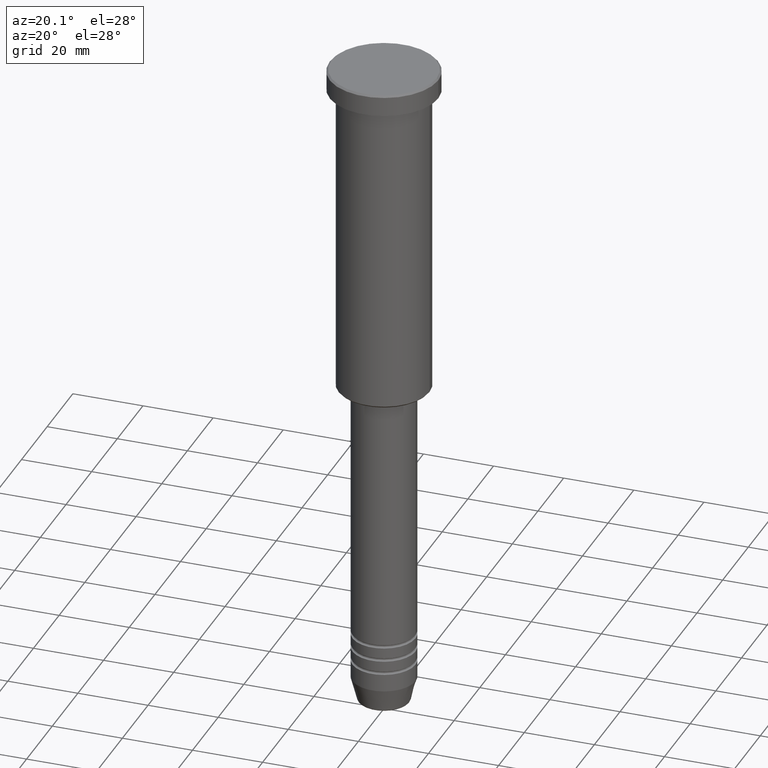
[diagram: clean part render]
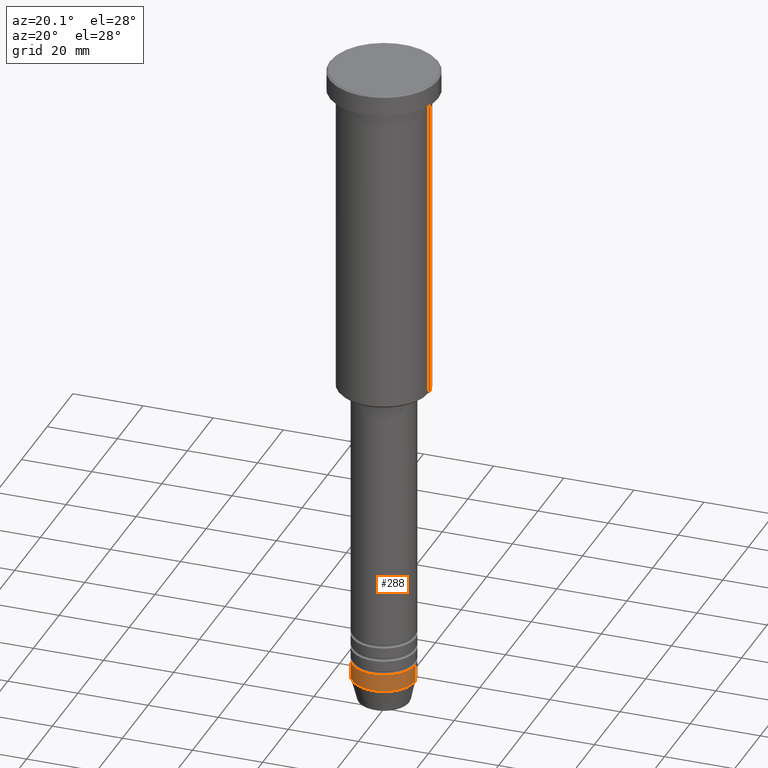
[diagram: same view with one face highlighted and labeled with its STEP entity id]
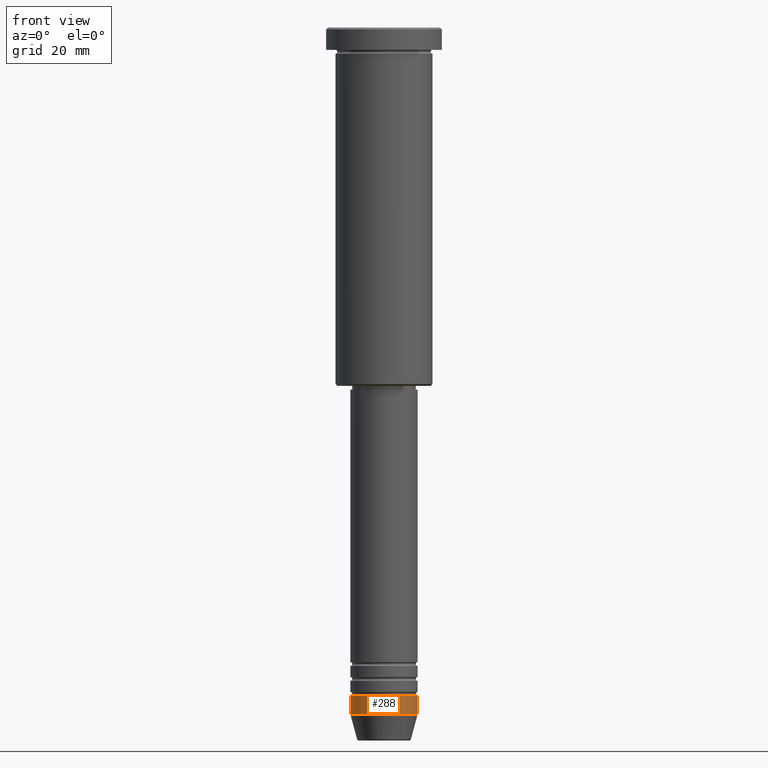
[diagram: same view with one face highlighted and labeled with its STEP entity id]
A machine part, auxiliary view. The second image highlights one B-rep face of the part: STEP entity #288.
A second angle (front view) of the same face is appended — the face is thin or edge-on in the first view.
In plain terms, the highlighted cylindrical surface (edge-blend (fillet) strip) has radius 9 mm, axis along (-0, -0, 1).
Its self-contained STEP definition (entity closure, byte-faithful):
#14 = LINE ( 'NONE', #478, #1001 ) ;
#17 = EDGE_CURVE ( 'NONE', #185, #1118, #470, .T. ) ;
#52 = ORIENTED_EDGE ( 'NONE', *, *, #592, .T. ) ;
#91 = DIRECTION ( 'NONE',  ( 1.000000000000000000, 0.000000000000000000, 0.000000000000000000 ) ) ;
#108 = EDGE_LOOP ( 'NONE', ( #730, #1179, #52, #282 ) ) ;
#125 = DIRECTION ( 'NONE',  ( 1.000000000000000000, 0.000000000000000000, 0.000000000000000000 ) ) ;
#128 = EDGE_CURVE ( 'NONE', #1118, #319, #1123, .T. ) ;
#179 = CARTESIAN_POINT ( 'NONE',  ( -9.000000000000000000, 1.102182119232617714E-15, 0.000000000000000000 ) ) ;
#185 = VERTEX_POINT ( 'NONE', #695 ) ;
#211 = DIRECTION ( 'NONE',  ( 1.000000000000000000, 0.000000000000000000, 0.000000000000000000 ) ) ;
#212 = DIRECTION ( 'NONE',  ( -0.000000000000000000, -0.000000000000000000, 1.000000000000000000 ) ) ;
#224 = VERTEX_POINT ( 'NONE', #1110 ) ;
#282 = ORIENTED_EDGE ( 'NONE', *, *, #128, .F. ) ;
#286 = AXIS2_PLACEMENT_3D ( 'NONE', #611, #624, #91 ) ;
#288 = ADVANCED_FACE ( 'NONE', ( #314 ), #1067, .T. ) ;
#295 = CARTESIAN_POINT ( 'NONE',  ( 0.000000000000000000, 0.000000000000000000, -179.0000000000000284 ) ) ;
#314 = FACE_OUTER_BOUND ( 'NONE', #108, .T. ) ;
#319 = VERTEX_POINT ( 'NONE', #530 ) ;
#470 = LINE ( 'NONE', #179, #1025 ) ;
#478 = CARTESIAN_POINT ( 'NONE',  ( 9.000000000000000000, 0.000000000000000000, 0.000000000000000000 ) ) ;
#486 = DIRECTION ( 'NONE',  ( -0.000000000000000000, -0.000000000000000000, 1.000000000000000000 ) ) ;
#501 = CARTESIAN_POINT ( 'NONE',  ( -9.000000000000000000, 1.102182119232617714E-15, -179.0000000000000284 ) ) ;
#530 = CARTESIAN_POINT ( 'NONE',  ( 9.000000000000000000, 0.000000000000000000, -179.0000000000000284 ) ) ;
#592 = EDGE_CURVE ( 'NONE', #224, #319, #14, .T. ) ;
#611 = CARTESIAN_POINT ( 'NONE',  ( 0.000000000000000000, 0.000000000000000000, 0.000000000000000000 ) ) ;
#624 = DIRECTION ( 'NONE',  ( -0.000000000000000000, -0.000000000000000000, 1.000000000000000000 ) ) ;
#627 = DIRECTION ( 'NONE',  ( -0.000000000000000000, -0.000000000000000000, 1.000000000000000000 ) ) ;
#676 = DIRECTION ( 'NONE',  ( -0.000000000000000000, -0.000000000000000000, 1.000000000000000000 ) ) ;
#695 = CARTESIAN_POINT ( 'NONE',  ( -9.000000000000000000, 1.102182119232617714E-15, -184.0000000000000000 ) ) ;
#714 = AXIS2_PLACEMENT_3D ( 'NONE', #295, #676, #211 ) ;
#730 = ORIENTED_EDGE ( 'NONE', *, *, #17, .F. ) ;
#798 = CIRCLE ( 'NONE', #887, 9.000000000000000000 ) ;
#887 = AXIS2_PLACEMENT_3D ( 'NONE', #936, #486, #125 ) ;
#936 = CARTESIAN_POINT ( 'NONE',  ( 0.000000000000000000, 0.000000000000000000, -184.0000000000000000 ) ) ;
#1001 = VECTOR ( 'NONE', #212, 1000.000000000000000 ) ;
#1025 = VECTOR ( 'NONE', #627, 1000.000000000000000 ) ;
#1067 = CYLINDRICAL_SURFACE ( 'NONE', #286, 9.000000000000000000 ) ;
#1072 = EDGE_CURVE ( 'NONE', #185, #224, #798, .T. ) ;
#1110 = CARTESIAN_POINT ( 'NONE',  ( 9.000000000000000000, 0.000000000000000000, -184.0000000000000000 ) ) ;
#1118 = VERTEX_POINT ( 'NONE', #501 ) ;
#1123 = CIRCLE ( 'NONE', #714, 9.000000000000000000 ) ;
#1179 = ORIENTED_EDGE ( 'NONE', *, *, #1072, .T. ) ;